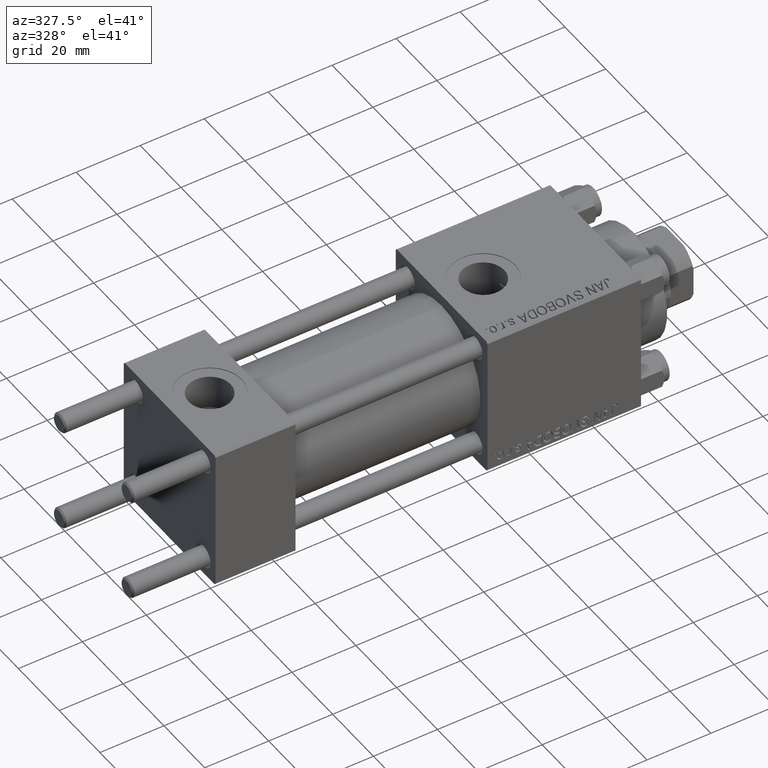
[diagram: clean part render]
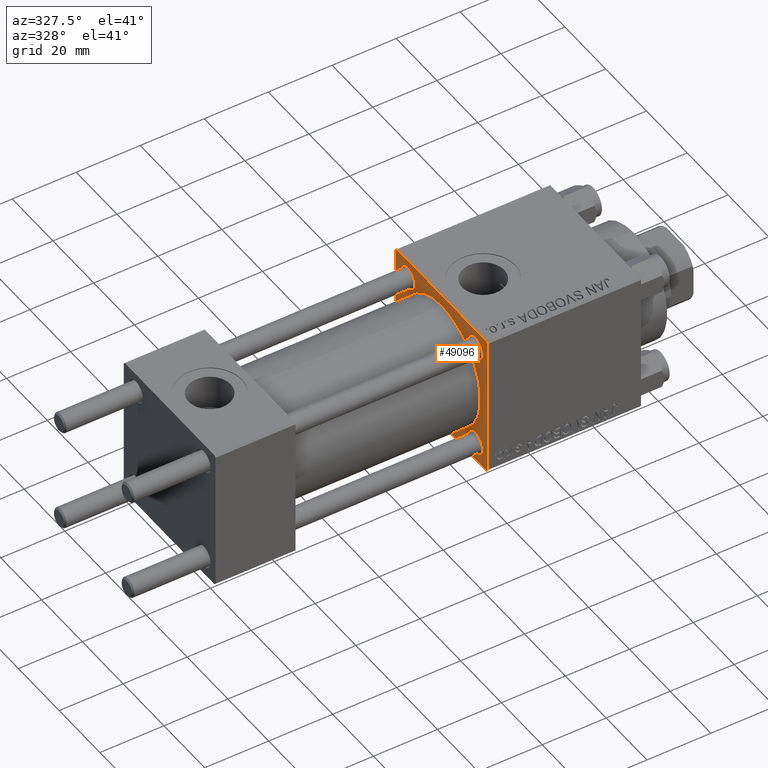
[diagram: same view with one face highlighted and labeled with its STEP entity id]
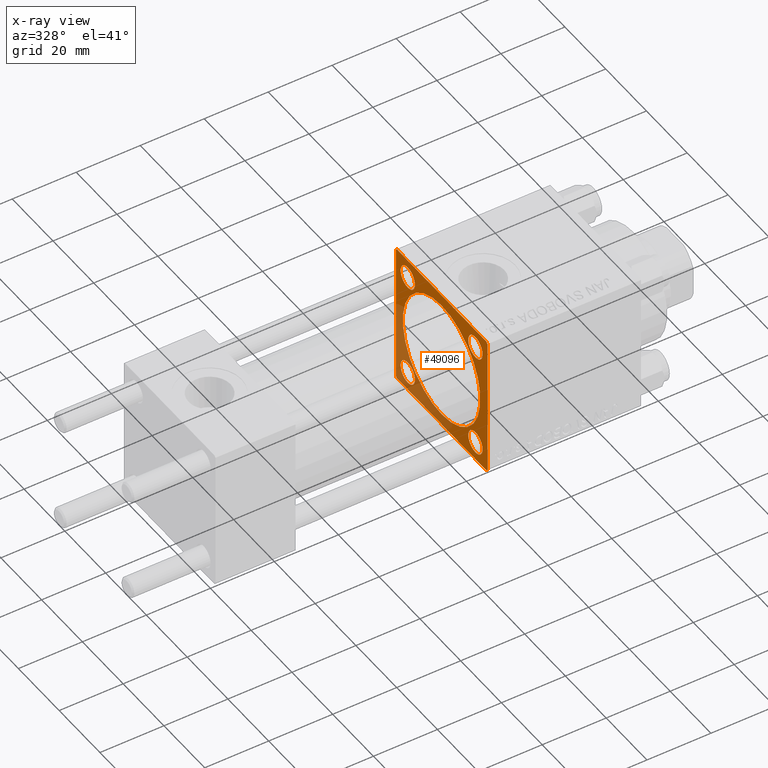
[diagram: x-ray of the same camera — body ghosted, the highlighted face saturated]
A machine part, auxiliary view. The second image highlights one B-rep face of the part: STEP entity #49096.
The next image is the same camera in x-ray: the body ghosted, the highlighted face saturated — about 29% of this face is hidden behind the body in this view.
In plain terms, the highlighted planar face has unit normal (-1, 0, 0).
Its self-contained STEP definition (entity closure, byte-faithful):
#324 = DIRECTION ( 'NONE',  ( 1.000000000000000000, -0.000000000000000000, 0.000000000000000000 ) ) ;
#857 = EDGE_CURVE ( 'NONE', #9038, #39577, #43781, .T. ) ;
#862 = ORIENTED_EDGE ( 'NONE', *, *, #27255, .T. ) ;
#1125 = CARTESIAN_POINT ( 'NONE',  ( 84.99999999999998579, -22.25000000000046541, -22.24999999999953815 ) ) ;
#1638 = EDGE_CURVE ( 'NONE', #9038, #17247, #2897, .T. ) ;
#2361 = DIRECTION ( 'NONE',  ( 1.000000000000000000, -0.000000000000000000, 0.000000000000000000 ) ) ;
#2458 = DIRECTION ( 'NONE',  ( 0.000000000000000000, 0.000000000000000000, 1.000000000000000000 ) ) ;
#2801 = VECTOR ( 'NONE', #17538, 1000.000000000000000 ) ;
#2897 = LINE ( 'NONE', #41501, #2801 ) ;
#3128 = VERTEX_POINT ( 'NONE', #7838 ) ;
#3534 = EDGE_LOOP ( 'NONE', ( #11650, #18970 ) ) ;
#4126 = CIRCLE ( 'NONE', #19310, 19.00000000000000000 ) ;
#4130 = CARTESIAN_POINT ( 'NONE',  ( 84.99999999999998579, -22.49999999999999645, 21.99999999999996447 ) ) ;
#4434 = EDGE_CURVE ( 'NONE', #34780, #49656, #36724, .T. ) ;
#4637 = CARTESIAN_POINT ( 'NONE',  ( 84.99999999999998579, 22.00000000000001776, 22.50000000000000355 ) ) ;
#4659 = LINE ( 'NONE', #1125, #38996 ) ;
#4713 = EDGE_CURVE ( 'NONE', #18272, #18699, #25418, .T. ) ;
#4834 = ORIENTED_EDGE ( 'NONE', *, *, #14546, .T. ) ;
#5323 = ORIENTED_EDGE ( 'NONE', *, *, #857, .T. ) ;
#5632 = FACE_BOUND ( 'NONE', #48723, .T. ) ;
#5633 = CARTESIAN_POINT ( 'NONE',  ( 84.99999999999998579, 2.326828918379970970E-15, -19.00000000000000000 ) ) ;
#5850 = DIRECTION ( 'NONE',  ( -0.000000000000000000, -0.7071067811865474617, -0.7071067811865474617 ) ) ;
#6413 = DIRECTION ( 'NONE',  ( 1.000000000000000000, -0.000000000000000000, 0.000000000000000000 ) ) ;
#6838 = CARTESIAN_POINT ( 'NONE',  ( 84.99999999999998579, 22.25000000000031974, 22.24999999999970512 ) ) ;
#7174 = CARTESIAN_POINT ( 'NONE',  ( 84.99999999999998579, -21.99999999999999645, -22.50000000000000000 ) ) ;
#7491 = AXIS2_PLACEMENT_3D ( 'NONE', #32356, #16747, #39712 ) ;
#7838 = CARTESIAN_POINT ( 'NONE',  ( 84.99999999999998579, 16.59999999999999787, -20.09999999999999432 ) ) ;
#7940 = CARTESIAN_POINT ( 'NONE',  ( 84.99999999999998579, 16.59999999999999787, 16.60000000000000497 ) ) ;
#8090 = EDGE_CURVE ( 'NONE', #31983, #44219, #38586, .T. ) ;
#8772 = CIRCLE ( 'NONE', #45814, 3.499999999999989342 ) ;
#9038 = VERTEX_POINT ( 'NONE', #4130 ) ;
#9689 = DIRECTION ( 'NONE',  ( 0.000000000000000000, 0.000000000000000000, 1.000000000000000000 ) ) ;
#9712 = LINE ( 'NONE', #36443, #49771 ) ;
#9874 = VERTEX_POINT ( 'NONE', #7174 ) ;
#10527 = CARTESIAN_POINT ( 'NONE',  ( 84.99999999999998579, -16.59999999999999076, -16.60000000000000853 ) ) ;
#10769 = DIRECTION ( 'NONE',  ( 0.000000000000000000, 0.000000000000000000, 1.000000000000000000 ) ) ;
#10924 = VERTEX_POINT ( 'NONE', #35900 ) ;
#11573 = CIRCLE ( 'NONE', #40593, 3.499999999999989342 ) ;
#11650 = ORIENTED_EDGE ( 'NONE', *, *, #22588, .T. ) ;
#11661 = DIRECTION ( 'NONE',  ( 0.000000000000000000, 0.000000000000000000, 1.000000000000000000 ) ) ;
#11756 = CARTESIAN_POINT ( 'NONE',  ( 84.99999999999998579, -22.49999999999999645, -21.99999999999997868 ) ) ;
#11927 = VECTOR ( 'NONE', #33556, 1000.000000000000000 ) ;
#12584 = EDGE_CURVE ( 'NONE', #18699, #18272, #37805, .T. ) ;
#12902 = VECTOR ( 'NONE', #5850, 1000.000000000000114 ) ;
#13135 = EDGE_CURVE ( 'NONE', #42369, #30168, #41745, .T. ) ;
#13234 = CARTESIAN_POINT ( 'NONE',  ( 84.99999999999998579, -22.24999999999997868, 22.24999999999997868 ) ) ;
#13457 = CARTESIAN_POINT ( 'NONE',  ( 84.99999999999998579, 16.59999999999999787, -13.10000000000001386 ) ) ;
#13942 = FACE_OUTER_BOUND ( 'NONE', #42856, .T. ) ;
#14029 = DIRECTION ( 'NONE',  ( 1.000000000000000000, 0.000000000000000000, 0.000000000000000000 ) ) ;
#14391 = EDGE_CURVE ( 'NONE', #49656, #34780, #4126, .T. ) ;
#14546 = EDGE_CURVE ( 'NONE', #44219, #25216, #17203, .T. ) ;
#14986 = AXIS2_PLACEMENT_3D ( 'NONE', #25604, #14029, #29141 ) ;
#15159 = ORIENTED_EDGE ( 'NONE', *, *, #4713, .T. ) ;
#15470 = DIRECTION ( 'NONE',  ( 1.000000000000000000, 0.000000000000000000, 0.000000000000000000 ) ) ;
#15515 = ORIENTED_EDGE ( 'NONE', *, *, #23167, .T. ) ;
#16450 = ORIENTED_EDGE ( 'NONE', *, *, #25154, .T. ) ;
#16515 = VECTOR ( 'NONE', #22293, 1000.000000000000000 ) ;
#16747 = DIRECTION ( 'NONE',  ( -1.000000000000000000, 0.000000000000000000, -0.000000000000000000 ) ) ;
#17203 = LINE ( 'NONE', #28776, #12902 ) ;
#17247 = VERTEX_POINT ( 'NONE', #11756 ) ;
#17538 = DIRECTION ( 'NONE',  ( 0.000000000000000000, 0.000000000000000000, -1.000000000000000000 ) ) ;
#17631 = VERTEX_POINT ( 'NONE', #4637 ) ;
#17726 = FACE_BOUND ( 'NONE', #3534, .T. ) ;
#18272 = VERTEX_POINT ( 'NONE', #32469 ) ;
#18285 = LINE ( 'NONE', #37966, #16515 ) ;
#18368 = ORIENTED_EDGE ( 'NONE', *, *, #13135, .T. ) ;
#18380 = ORIENTED_EDGE ( 'NONE', *, *, #1638, .F. ) ;
#18699 = VERTEX_POINT ( 'NONE', #44467 ) ;
#18793 = CARTESIAN_POINT ( 'NONE',  ( 84.99999999999998579, 22.00000000000000355, -22.49999999999999645 ) ) ;
#18951 = CIRCLE ( 'NONE', #26947, 3.499999999999989342 ) ;
#18970 = ORIENTED_EDGE ( 'NONE', *, *, #40469, .T. ) ;
#19050 = CARTESIAN_POINT ( 'NONE',  ( 84.99999999999998579, 22.50000000000000355, 22.00000000000000355 ) ) ;
#19280 = DIRECTION ( 'NONE',  ( 1.000000000000000000, -0.000000000000000000, 0.000000000000000000 ) ) ;
#19310 = AXIS2_PLACEMENT_3D ( 'NONE', #34116, #15470, #30323 ) ;
#20349 = CARTESIAN_POINT ( 'NONE',  ( 84.99999999999998579, 22.50000000000000355, -21.99999999999998224 ) ) ;
#20512 = DIRECTION ( 'NONE',  ( 1.000000000000000000, -0.000000000000000000, 0.000000000000000000 ) ) ;
#20753 = FACE_BOUND ( 'NONE', #38666, .T. ) ;
#21491 = FACE_BOUND ( 'NONE', #46872, .T. ) ;
#21984 = CIRCLE ( 'NONE', #47796, 3.499999999999989342 ) ;
#22293 = DIRECTION ( 'NONE',  ( 0.000000000000000000, -1.000000000000000000, -7.709882115452476934E-17 ) ) ;
#22588 = EDGE_CURVE ( 'NONE', #10924, #30220, #21984, .T. ) ;
#22962 = EDGE_CURVE ( 'NONE', #9874, #17247, #4659, .T. ) ;
#23021 = AXIS2_PLACEMENT_3D ( 'NONE', #48788, #6413, #29084 ) ;
#23167 = EDGE_CURVE ( 'NONE', #3128, #26165, #11573, .T. ) ;
#25154 = EDGE_CURVE ( 'NONE', #25216, #9874, #18285, .T. ) ;
#25216 = VERTEX_POINT ( 'NONE', #18793 ) ;
#25418 = CIRCLE ( 'NONE', #23021, 3.499999999999989342 ) ;
#25604 = CARTESIAN_POINT ( 'NONE',  ( 84.99999999999998579, 0.000000000000000000, 0.000000000000000000 ) ) ;
#26165 = VERTEX_POINT ( 'NONE', #13457 ) ;
#26682 = DIRECTION ( 'NONE',  ( 0.000000000000000000, 0.000000000000000000, -1.000000000000000000 ) ) ;
#26780 = ORIENTED_EDGE ( 'NONE', *, *, #12584, .T. ) ;
#26947 = AXIS2_PLACEMENT_3D ( 'NONE', #44249, #2361, #9689 ) ;
#27129 = CARTESIAN_POINT ( 'NONE',  ( 84.99999999999998579, -16.59999999999999076, -16.60000000000000853 ) ) ;
#27255 = EDGE_CURVE ( 'NONE', #26165, #3128, #18951, .T. ) ;
#27416 = VECTOR ( 'NONE', #37448, 1000.000000000000114 ) ;
#27870 = ORIENTED_EDGE ( 'NONE', *, *, #14391, .T. ) ;
#28773 = VECTOR ( 'NONE', #26682, 1000.000000000000000 ) ;
#28776 = CARTESIAN_POINT ( 'NONE',  ( 84.99999999999998579, 22.24999999999999645, -22.24999999999999645 ) ) ;
#29084 = DIRECTION ( 'NONE',  ( 0.000000000000000000, 0.000000000000000000, 1.000000000000000000 ) ) ;
#29141 = DIRECTION ( 'NONE',  ( 0.000000000000000000, 0.000000000000000000, -1.000000000000000000 ) ) ;
#29173 = DIRECTION ( 'NONE',  ( 0.000000000000000000, 0.000000000000000000, 1.000000000000000000 ) ) ;
#30168 = VERTEX_POINT ( 'NONE', #46493 ) ;
#30220 = VERTEX_POINT ( 'NONE', #46744 ) ;
#30323 = DIRECTION ( 'NONE',  ( 0.000000000000000000, 0.000000000000000000, -1.000000000000000000 ) ) ;
#31284 = ORIENTED_EDGE ( 'NONE', *, *, #8090, .T. ) ;
#31431 = CARTESIAN_POINT ( 'NONE',  ( 84.99999999999998579, 0.000000000000000000, 19.00000000000000000 ) ) ;
#31983 = VERTEX_POINT ( 'NONE', #19050 ) ;
#32113 = FACE_BOUND ( 'NONE', #33354, .T. ) ;
#32356 = CARTESIAN_POINT ( 'NONE',  ( 84.99999999999998579, 0.000000000000000000, 0.000000000000000000 ) ) ;
#32420 = DIRECTION ( 'NONE',  ( 0.000000000000000000, 0.000000000000000000, 1.000000000000000000 ) ) ;
#32469 = CARTESIAN_POINT ( 'NONE',  ( 84.99999999999998579, -16.59999999999999076, 20.09999999999999787 ) ) ;
#33283 = CARTESIAN_POINT ( 'NONE',  ( 84.99999999999998579, 16.59999999999999787, 16.60000000000000497 ) ) ;
#33354 = EDGE_LOOP ( 'NONE', ( #27870, #41155 ) ) ;
#33556 = DIRECTION ( 'NONE',  ( 0.000000000000000000, 0.7071067811865378028, -0.7071067811865573427 ) ) ;
#34116 = CARTESIAN_POINT ( 'NONE',  ( 84.99999999999998579, 0.000000000000000000, 0.000000000000000000 ) ) ;
#34209 = CARTESIAN_POINT ( 'NONE',  ( 84.99999999999998579, -16.59999999999999076, 16.60000000000000853 ) ) ;
#34520 = AXIS2_PLACEMENT_3D ( 'NONE', #10527, #44846, #29173 ) ;
#34780 = VERTEX_POINT ( 'NONE', #5633 ) ;
#35415 = CARTESIAN_POINT ( 'NONE',  ( 84.99999999999998579, -21.99999999999995381, 22.49999999999999289 ) ) ;
#35900 = CARTESIAN_POINT ( 'NONE',  ( 84.99999999999998579, -16.59999999999999076, -13.10000000000001741 ) ) ;
#36172 = ORIENTED_EDGE ( 'NONE', *, *, #36195, .T. ) ;
#36195 = EDGE_CURVE ( 'NONE', #17631, #31983, #41156, .T. ) ;
#36443 = CARTESIAN_POINT ( 'NONE',  ( 84.99999999999998579, 22.50000000000000355, 22.50000000000000355 ) ) ;
#36486 = ORIENTED_EDGE ( 'NONE', *, *, #38491, .F. ) ;
#36724 = CIRCLE ( 'NONE', #14986, 19.00000000000000000 ) ;
#37018 = AXIS2_PLACEMENT_3D ( 'NONE', #33283, #20512, #37094 ) ;
#37094 = DIRECTION ( 'NONE',  ( 0.000000000000000000, 0.000000000000000000, 1.000000000000000000 ) ) ;
#37448 = DIRECTION ( 'NONE',  ( -0.000000000000000000, 0.7071067811865474617, 0.7071067811865474617 ) ) ;
#37805 = CIRCLE ( 'NONE', #45767, 3.499999999999989342 ) ;
#37966 = CARTESIAN_POINT ( 'NONE',  ( 84.99999999999998579, 22.50000000000000355, -22.49999999999999645 ) ) ;
#38491 = EDGE_CURVE ( 'NONE', #17631, #39577, #9712, .T. ) ;
#38586 = LINE ( 'NONE', #49686, #28773 ) ;
#38621 = ORIENTED_EDGE ( 'NONE', *, *, #22962, .T. ) ;
#38666 = EDGE_LOOP ( 'NONE', ( #15159, #26780 ) ) ;
#38996 = VECTOR ( 'NONE', #47038, 1000.000000000000000 ) ;
#39577 = VERTEX_POINT ( 'NONE', #35415 ) ;
#39712 = DIRECTION ( 'NONE',  ( -0.000000000000000000, 0.000000000000000000, 1.000000000000000000 ) ) ;
#40411 = EDGE_CURVE ( 'NONE', #30168, #42369, #8772, .T. ) ;
#40469 = EDGE_CURVE ( 'NONE', #30220, #10924, #43413, .T. ) ;
#40593 = AXIS2_PLACEMENT_3D ( 'NONE', #49515, #324, #11661 ) ;
#41155 = ORIENTED_EDGE ( 'NONE', *, *, #4434, .T. ) ;
#41156 = LINE ( 'NONE', #6838, #11927 ) ;
#41501 = CARTESIAN_POINT ( 'NONE',  ( 84.99999999999998579, -22.49999999999999645, 22.49999999999999289 ) ) ;
#41745 = CIRCLE ( 'NONE', #37018, 3.499999999999989342 ) ;
#42369 = VERTEX_POINT ( 'NONE', #45719 ) ;
#42574 = DIRECTION ( 'NONE',  ( 1.000000000000000000, -0.000000000000000000, 0.000000000000000000 ) ) ;
#42856 = EDGE_LOOP ( 'NONE', ( #16450, #38621, #18380, #5323, #36486, #36172, #31284, #4834 ) ) ;
#43413 = CIRCLE ( 'NONE', #34520, 3.499999999999989342 ) ;
#43781 = LINE ( 'NONE', #13234, #27416 ) ;
#44025 = DIRECTION ( 'NONE',  ( 0.000000000000000000, -1.000000000000000000, -2.312964634635742957E-16 ) ) ;
#44219 = VERTEX_POINT ( 'NONE', #20349 ) ;
#44249 = CARTESIAN_POINT ( 'NONE',  ( 84.99999999999998579, 16.59999999999999787, -16.60000000000000497 ) ) ;
#44467 = CARTESIAN_POINT ( 'NONE',  ( 84.99999999999998579, -16.59999999999999076, 13.10000000000001741 ) ) ;
#44846 = DIRECTION ( 'NONE',  ( 1.000000000000000000, -0.000000000000000000, 0.000000000000000000 ) ) ;
#45719 = CARTESIAN_POINT ( 'NONE',  ( 84.99999999999998579, 16.59999999999999787, 13.10000000000001386 ) ) ;
#45767 = AXIS2_PLACEMENT_3D ( 'NONE', #34209, #49625, #2458 ) ;
#45814 = AXIS2_PLACEMENT_3D ( 'NONE', #7940, #19280, #10769 ) ;
#45943 = ORIENTED_EDGE ( 'NONE', *, *, #40411, .T. ) ;
#46493 = CARTESIAN_POINT ( 'NONE',  ( 84.99999999999998579, 16.59999999999999787, 20.09999999999999432 ) ) ;
#46744 = CARTESIAN_POINT ( 'NONE',  ( 84.99999999999998579, -16.59999999999999076, -20.09999999999999787 ) ) ;
#46872 = EDGE_LOOP ( 'NONE', ( #45943, #18368 ) ) ;
#47038 = DIRECTION ( 'NONE',  ( 0.000000000000000000, -0.7071067811865328068, 0.7071067811865622277 ) ) ;
#47796 = AXIS2_PLACEMENT_3D ( 'NONE', #27129, #42574, #32420 ) ;
#48259 = PLANE ( 'NONE',  #7491 ) ;
#48723 = EDGE_LOOP ( 'NONE', ( #862, #15515 ) ) ;
#48788 = CARTESIAN_POINT ( 'NONE',  ( 84.99999999999998579, -16.59999999999999076, 16.60000000000000853 ) ) ;
#49096 = ADVANCED_FACE ( 'NONE', ( #20753, #21491, #5632, #17726, #32113, #13942 ), #48259, .T. ) ;
#49515 = CARTESIAN_POINT ( 'NONE',  ( 84.99999999999998579, 16.59999999999999787, -16.60000000000000497 ) ) ;
#49625 = DIRECTION ( 'NONE',  ( 1.000000000000000000, -0.000000000000000000, 0.000000000000000000 ) ) ;
#49656 = VERTEX_POINT ( 'NONE', #31431 ) ;
#49686 = CARTESIAN_POINT ( 'NONE',  ( 84.99999999999998579, 22.50000000000000355, 22.50000000000000355 ) ) ;
#49771 = VECTOR ( 'NONE', #44025, 1000.000000000000000 ) ;